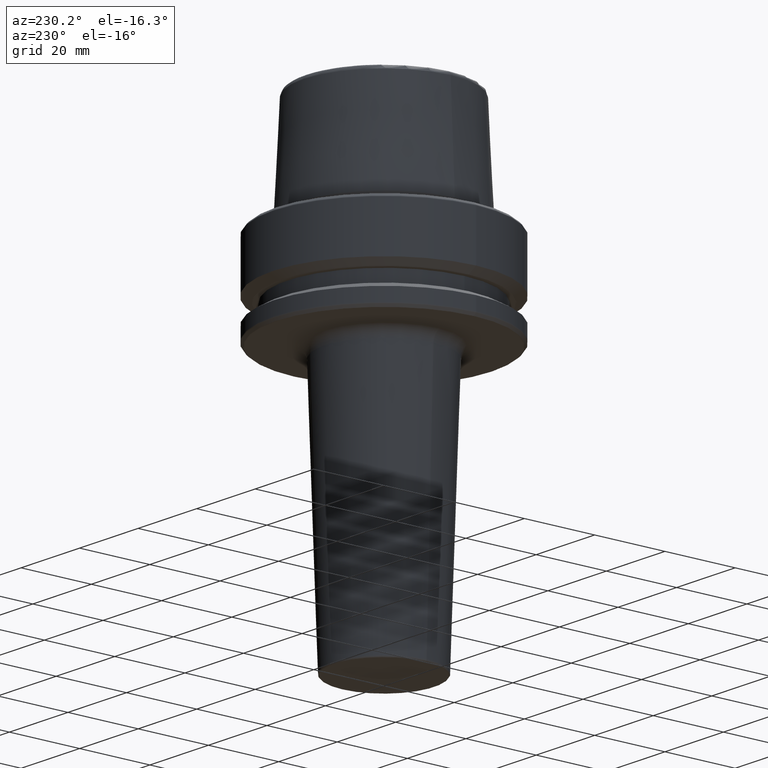
[diagram: clean part render]
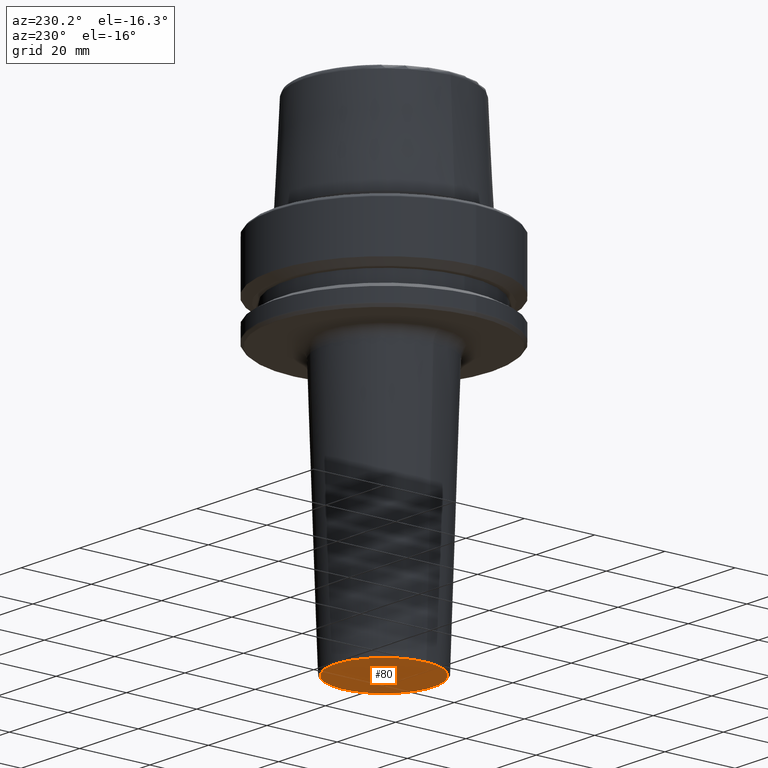
[diagram: same view with one face highlighted and labeled with its STEP entity id]
A machine part, auxiliary view. The second image highlights one B-rep face of the part: STEP entity #80.
In plain terms, the highlighted planar face has unit normal (-0, 0, -1).
Its self-contained STEP definition (entity closure, byte-faithful):
#10 = VERTEX_POINT ( 'NONE', #399 ) ;
#43 = DIRECTION ( 'NONE',  ( -0.0000000000000000000, 0.0000000000000000000, -1.000000000000000000 ) ) ;
#71 = DIRECTION ( 'NONE',  ( -0.0000000000000000000, -0.0000000000000000000, -1.000000000000000000 ) ) ;
#78 = CIRCLE ( 'NONE', #929, 14.01638896600654700 ) ;
#80 = ADVANCED_FACE ( 'NONE', ( #408 ), #621, .T. ) ;
#143 = DIRECTION ( 'NONE',  ( -0.0000000000000000000, -0.0000000000000000000, -1.000000000000000000 ) ) ;
#243 = DIRECTION ( 'NONE',  ( -1.000000000000000000, 0.0000000000000000000, 0.0000000000000000000 ) ) ;
#303 = ORIENTED_EDGE ( 'NONE', *, *, #822, .T. ) ;
#399 = CARTESIAN_POINT ( 'NONE',  ( 14.01638896600654700, 1.747111763438823100E-015, -101.0000000000000000 ) ) ;
#408 = FACE_OUTER_BOUND ( 'NONE', #1257, .T. ) ;
#413 = DIRECTION ( 'NONE',  ( -1.000000000000000000, 0.0000000000000000000, 0.0000000000000000000 ) ) ;
#554 = CARTESIAN_POINT ( 'NONE',  ( 0.0000000000000000000, 0.0000000000000000000, -101.0000000000000000 ) ) ;
#621 = PLANE ( 'NONE',  #1071 ) ;
#638 = VERTEX_POINT ( 'NONE', #954 ) ;
#660 = DIRECTION ( 'NONE',  ( -1.000000000000000000, 0.0000000000000000000, 0.0000000000000000000 ) ) ;
#822 = EDGE_CURVE ( 'NONE', #10, #638, #78, .T. ) ;
#897 = CARTESIAN_POINT ( 'NONE',  ( 0.0000000000000000000, 9.666597024753517400E-014, -101.0000000000000000 ) ) ;
#929 = AXIS2_PLACEMENT_3D ( 'NONE', #1240, #71, #660 ) ;
#954 = CARTESIAN_POINT ( 'NONE',  ( -14.01638896600654700, 0.0000000000000000000, -101.0000000000000000 ) ) ;
#961 = CIRCLE ( 'NONE', #966, 14.01638896600654700 ) ;
#966 = AXIS2_PLACEMENT_3D ( 'NONE', #554, #143, #243 ) ;
#982 = ORIENTED_EDGE ( 'NONE', *, *, #1054, .T. ) ;
#1054 = EDGE_CURVE ( 'NONE', #638, #10, #961, .T. ) ;
#1071 = AXIS2_PLACEMENT_3D ( 'NONE', #897, #43, #413 ) ;
#1240 = CARTESIAN_POINT ( 'NONE',  ( 0.0000000000000000000, 0.0000000000000000000, -101.0000000000000000 ) ) ;
#1257 = EDGE_LOOP ( 'NONE', ( #982, #303 ) ) ;